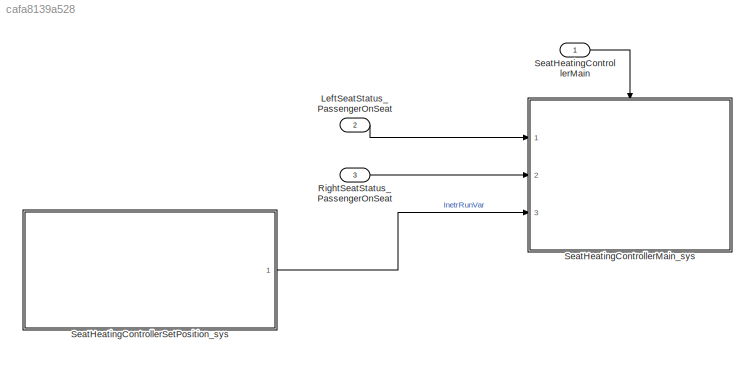
MODEL slx_cafa8139a528
KIND model
CONFIG AbsTol = auto
CONFIG FixedStep = 0.1
CONFIG MaxStep = auto
CONFIG MinStep = auto
CONFIG RelTol = 1e-3
CONFIG SampleTimeConstraint = Unconstrained
CONFIG Solver = FixedStepDiscrete
CONFIG SolverMode = Auto
CONFIG SolverName = FixedStepDiscrete
CONFIG StartTime = 0.0
CONFIG StopTime = 10.0
BLOCK [Inport] LeftSeatStatus_PassengerOnSeat
  IconDisplay = Port number
  OutDataTypeStr = boolean
  Port = 2
  PortDimensions = 1
  SamplingMode = Sample based
  SignalType = real
BLOCK [Inport] RightSeatStatus_PassengerOnSeat
  IconDisplay = Port number
  OutDataTypeStr = boolean
  Port = 3
  PortDimensions = 1
  SamplingMode = Sample based
  SignalType = real
BLOCK [Inport] SeatHeatingControllerMain
  IconDisplay = Port number
  OutputFunctionCall = on
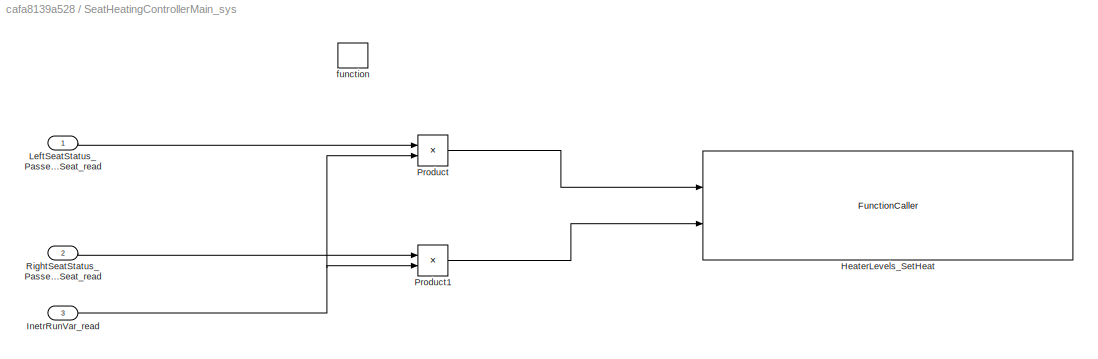
BLOCK [SubSystem] SeatHeatingControllerMain_sys
  Ports = [3, 0, 0, 1]
  RequestExecContextInheritance = off
BLOCK [FunctionCaller] SeatHeatingControllerMain_sys/HeaterLevels_SetHeat
  FunctionPrototype = SeatHeaterMain(LeftHeatLevel,RightHeatLevel)
  InputArgumentSpecifications = P_Int32, P_Int32
  Ports = [2]
BLOCK [Inport] SeatHeatingControllerMain_sys/InetrRunVar_read
  IconDisplay = Port number
  Port = 3
BLOCK [Inport] SeatHeatingControllerMain_sys/LeftSeatStatus_PassengerOnSeat_read
  IconDisplay = Port number
BLOCK [Product] SeatHeatingControllerMain_sys/Product
  InputSameDT = off
  OutDataTypeStr = Inherit: Inherit via back propagation
  Ports = [2, 1]
  RndMeth = Floor
  SaturateOnIntegerOverflow = off
BLOCK [Product] SeatHeatingControllerMain_sys/Product1
  InputSameDT = off
  OutDataTypeStr = Inherit: Inherit via back propagation
  Ports = [2, 1]
  RndMeth = Floor
  SaturateOnIntegerOverflow = off
BLOCK [Inport] SeatHeatingControllerMain_sys/RightSeatStatus_PassengerOnSeat_read
  IconDisplay = Port number
  Port = 2
BLOCK [TriggerPort] SeatHeatingControllerMain_sys/function
  Ports = []
  StatesWhenEnabling = held
  TriggerType = function-call
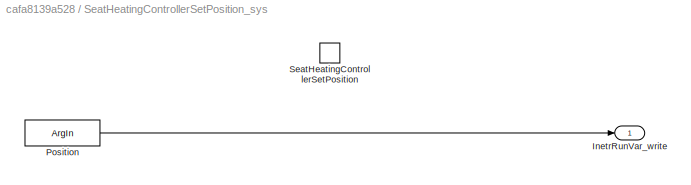
BLOCK [SubSystem] SeatHeatingControllerSetPosition_sys
  Ports = [0, 1, 0, 1]
  RequestExecContextInheritance = off
BLOCK [Outport] SeatHeatingControllerSetPosition_sys/InetrRunVar_write
  IconDisplay = Port number
  OutDataTypeStr = Int32
  PortDimensions = 1
  SamplingMode = Sample based
  SignalType = real
BLOCK [ArgIn] SeatHeatingControllerSetPosition_sys/Position
  ArgumentName = Position
  OutDataTypeStr = Int32
BLOCK [TriggerPort] SeatHeatingControllerSetPosition_sys/SeatHeatingControllerSetPosition
  FunctionName = SeatHeatingControllerSetPosition
  IsSimulinkFunction = on
  Ports = []
  StatesWhenEnabling = held
  TriggerType = function-call
LINE LeftSeatStatus_PassengerOnSeat:1 -> SeatHeatingControllerMain_sys:1
LINE RightSeatStatus_PassengerOnSeat:1 -> SeatHeatingControllerMain_sys:2
LINE SeatHeatingControllerMain:1 -> SeatHeatingControllerMain_sys:trigger
NET SeatHeatingControllerMain_sys/InetrRunVar_read:1 -> SeatHeatingControllerMain_sys/Product1:2, SeatHeatingControllerMain_sys/Product:2
LINE SeatHeatingControllerMain_sys/LeftSeatStatus_PassengerOnSeat_read:1 -> SeatHeatingControllerMain_sys/Product:1
LINE SeatHeatingControllerMain_sys/Product1:1 -> SeatHeatingControllerMain_sys/HeaterLevels_SetHeat:2
LINE SeatHeatingControllerMain_sys/Product:1 -> SeatHeatingControllerMain_sys/HeaterLevels_SetHeat:1
LINE SeatHeatingControllerMain_sys/RightSeatStatus_PassengerOnSeat_read:1 -> SeatHeatingControllerMain_sys/Product1:1
LINE SeatHeatingControllerSetPosition_sys/Position:1 -> SeatHeatingControllerSetPosition_sys/InetrRunVar_write:1
LINE SeatHeatingControllerSetPosition_sys:1 -> SeatHeatingControllerMain_sys:3
note: NET lines group one-source signal fan-out (src -> all destinations, sorted); 1:1 wires keep LINE
